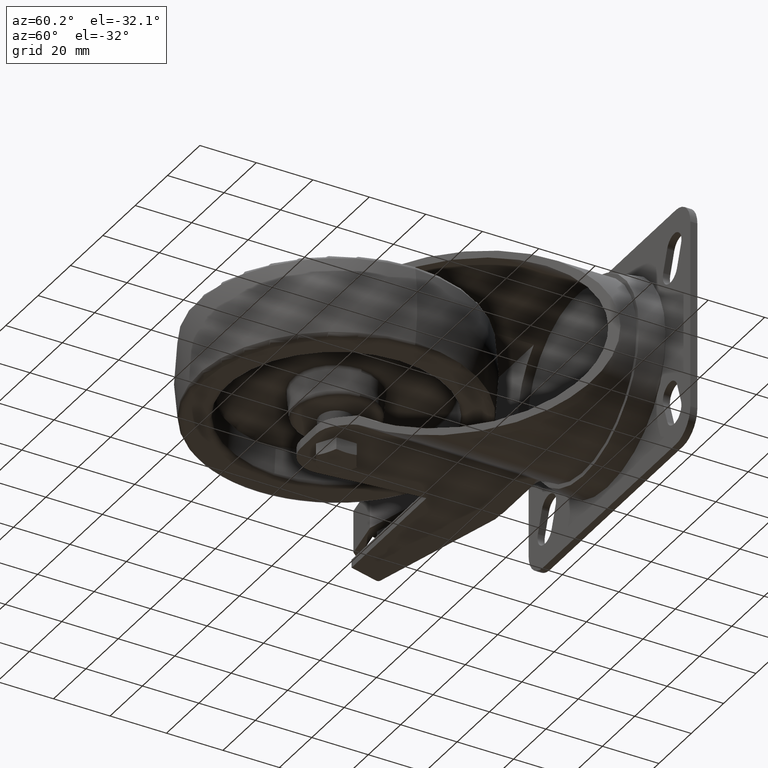
[diagram: clean part render]
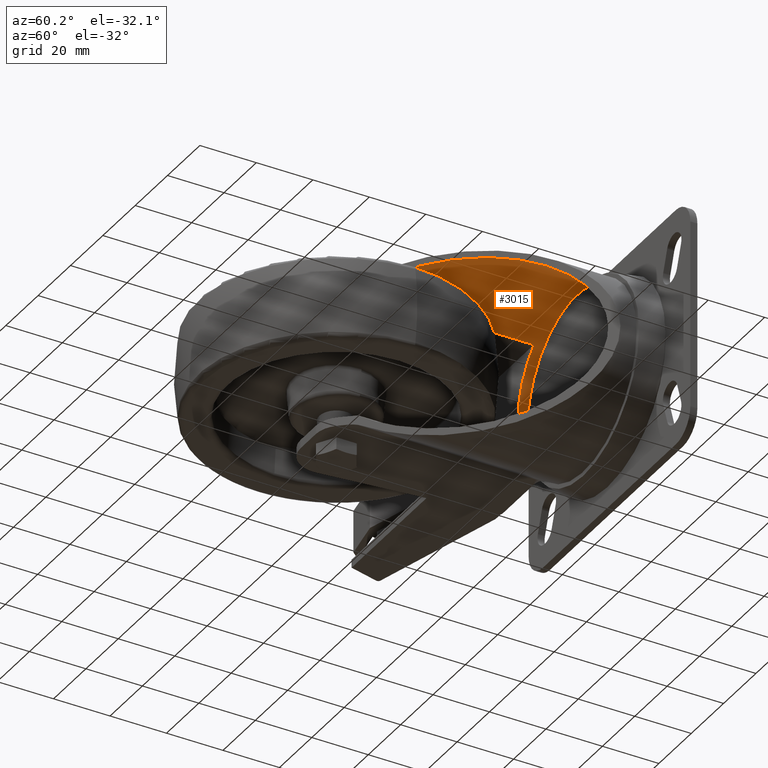
[diagram: same view with one face highlighted and labeled with its STEP entity id]
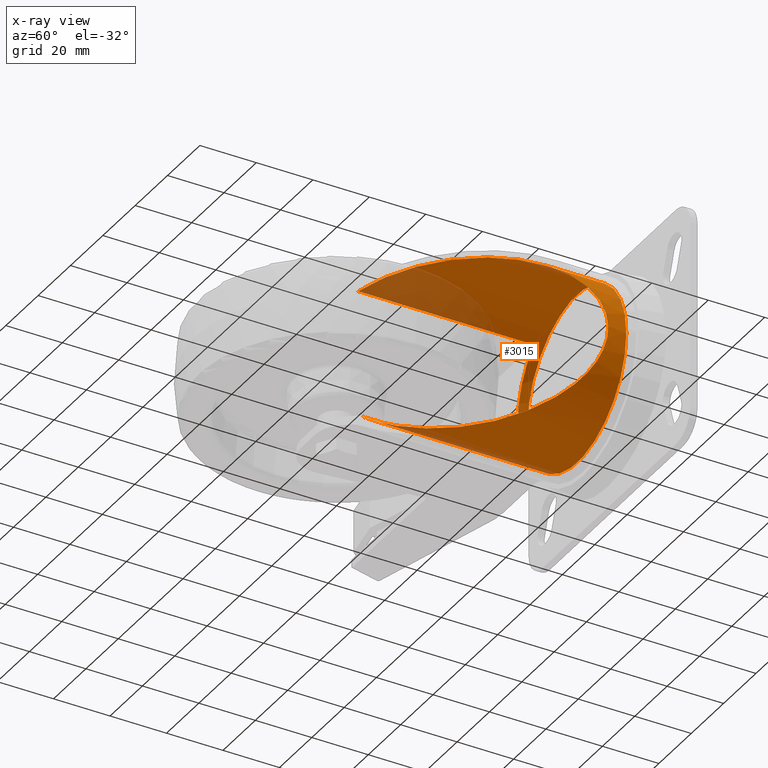
[diagram: x-ray of the same camera — body ghosted, the highlighted face saturated]
A machine part, auxiliary view. The second image highlights one B-rep face of the part: STEP entity #3015.
The next image is the same camera in x-ray: the body ghosted, the highlighted face saturated — about 16% of this face is hidden behind the body in this view.
In plain terms, the highlighted cylindrical surface (bore or boss wall) has radius 30.5 mm, axis along (0, -1, 0).
Its self-contained STEP definition (entity closure, byte-faithful):
#107=ELLIPSE('',#3292,46.7387825769155,30.5);
#136=CYLINDRICAL_SURFACE('',#3289,30.5);
#236=FACE_OUTER_BOUND('',#414,.T.);
#414=EDGE_LOOP('',(#2120,#2121,#2122,#2123,#2124,#2125,#2126,#2127));
#638=CIRCLE('',#3290,30.5);
#639=CIRCLE('',#3291,30.5);
#640=CIRCLE('',#3293,30.5);
#743=LINE('',#4439,#950);
#819=LINE('',#4977,#1026);
#820=LINE('',#4982,#1027);
#950=VECTOR('',#3529,62.2283913633084);
#1026=VECTOR('',#3847,30.5);
#1027=VECTOR('',#3852,62.2283913633084);
#1159=VERTEX_POINT('',#4436);
#1160=VERTEX_POINT('',#4438);
#1273=VERTEX_POINT('',#4974);
#1274=VERTEX_POINT('',#4976);
#1275=VERTEX_POINT('',#4979);
#1276=VERTEX_POINT('',#4981);
#1435=EDGE_CURVE('',#1160,#1159,#743,.T.);
#1596=EDGE_CURVE('',#1273,#1273,#638,.T.);
#1597=EDGE_CURVE('',#1273,#1274,#819,.T.);
#1598=EDGE_CURVE('',#1274,#1160,#639,.T.);
#1599=EDGE_CURVE('',#1275,#1159,#107,.T.);
#1600=EDGE_CURVE('',#1275,#1276,#820,.T.);
#1601=EDGE_CURVE('',#1276,#1274,#640,.T.);
#2120=ORIENTED_EDGE('',*,*,#1596,.T.);
#2121=ORIENTED_EDGE('',*,*,#1597,.T.);
#2122=ORIENTED_EDGE('',*,*,#1598,.T.);
#2123=ORIENTED_EDGE('',*,*,#1435,.T.);
#2124=ORIENTED_EDGE('',*,*,#1599,.F.);
#2125=ORIENTED_EDGE('',*,*,#1600,.T.);
#2126=ORIENTED_EDGE('',*,*,#1601,.T.);
#2127=ORIENTED_EDGE('',*,*,#1597,.F.);
#3015=ADVANCED_FACE('',(#236),#136,.F.);
#3289=AXIS2_PLACEMENT_3D('',#4973,#3843,#3844);
#3290=AXIS2_PLACEMENT_3D('',#4975,#3845,#3846);
#3291=AXIS2_PLACEMENT_3D('',#4978,#3848,#3849);
#3292=AXIS2_PLACEMENT_3D('',#4980,#3850,#3851);
#3293=AXIS2_PLACEMENT_3D('',#4983,#3853,#3854);
#3529=DIRECTION('',(0.,-1.,0.));
#3843=DIRECTION('center_axis',(0.,-1.,0.));
#3844=DIRECTION('ref_axis',(1.,0.,0.));
#3845=DIRECTION('center_axis',(0.,1.,0.));
#3846=DIRECTION('ref_axis',(1.,0.,0.));
#3847=DIRECTION('',(0.,-1.,0.));
#3848=DIRECTION('center_axis',(0.,-1.,0.));
#3849=DIRECTION('ref_axis',(1.,0.,0.));
#3850=DIRECTION('center_axis',(-0.757734475862358,0.652562996261355,-8.85407468434452E-33));
#3851=DIRECTION('ref_axis',(0.652562996261355,0.757734475862358,-1.59826558298209E-16));
#3852=DIRECTION('',(0.,1.,0.));
#3853=DIRECTION('center_axis',(0.,-1.,0.));
#3854=DIRECTION('ref_axis',(1.,0.,0.));
#4436=CARTESIAN_POINT('',(16.408739718026,-1.72839136330843,-22.5));
#4438=CARTESIAN_POINT('',(16.408739718026,60.5,-22.5));
#4439=CARTESIAN_POINT('',(16.408739718026,60.5,-22.5));
#4973=CARTESIAN_POINT('Origin',(37.,27.,0.));
#4974=CARTESIAN_POINT('',(6.5,64.,3.73504937915843E-15));
#4975=CARTESIAN_POINT('Origin',(37.,64.,0.));
#4976=CARTESIAN_POINT('',(6.5,60.5,-3.73517273739943E-15));
#4977=CARTESIAN_POINT('',(6.5,27.,-3.73517273739943E-15));
#4978=CARTESIAN_POINT('Origin',(37.,60.5,0.));
#4979=CARTESIAN_POINT('',(16.408739718026,-1.72839136330844,22.5));
#4980=CARTESIAN_POINT('Origin',(37.,22.1814961211146,0.));
#4981=CARTESIAN_POINT('',(16.408739718026,60.5,22.5));
#4982=CARTESIAN_POINT('',(16.408739718026,-1.72839136330844,22.5));
#4983=CARTESIAN_POINT('Origin',(37.,60.5,0.));